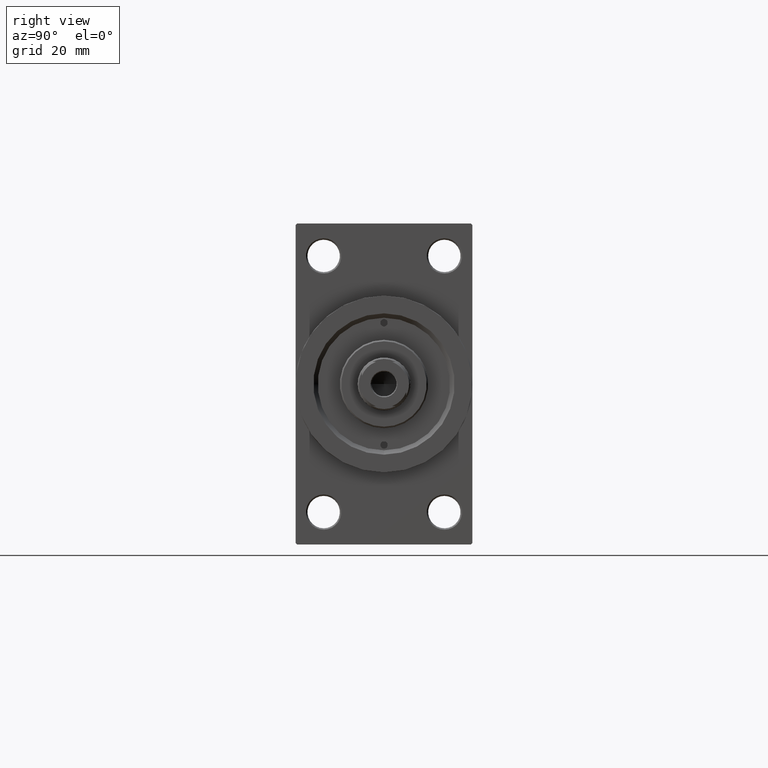
[diagram: clean part render]
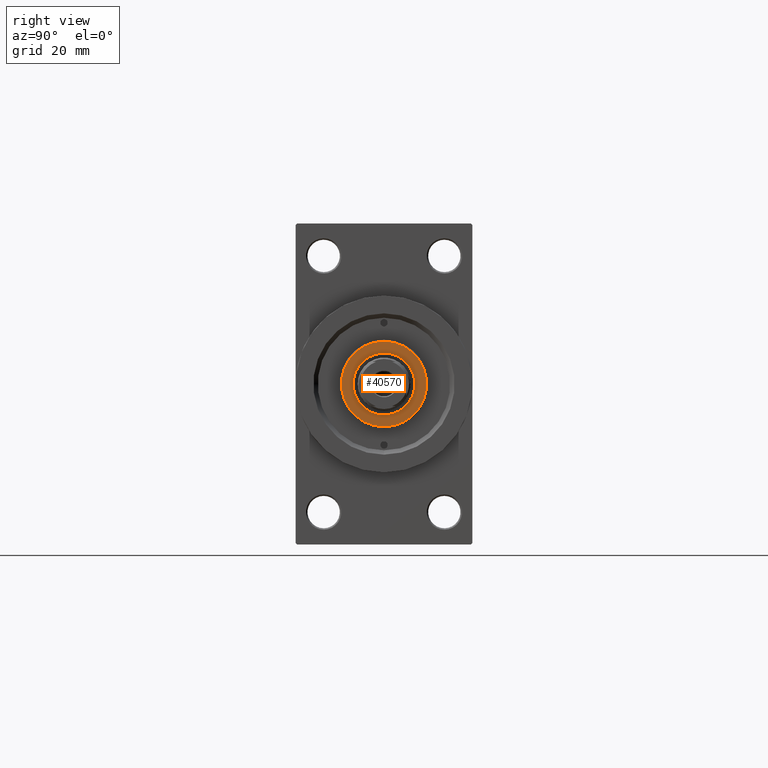
[diagram: same view with one face highlighted and labeled with its STEP entity id]
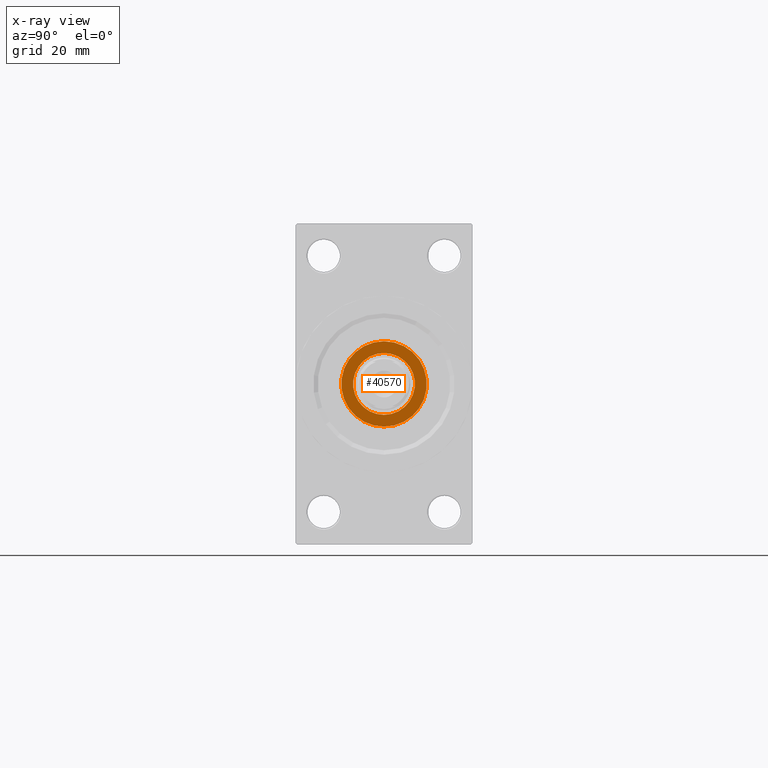
[diagram: x-ray of the same camera — body ghosted, the highlighted face saturated]
A machine part, right view. The second image highlights one B-rep face of the part: STEP entity #40570.
The next image is the same camera in x-ray: the body ghosted, the highlighted face saturated — about 0% of this face is hidden behind the body in this view.
In plain terms, the highlighted planar face has unit normal (1, -0, -0).
Its self-contained STEP definition (entity closure, byte-faithful):
#592 = CARTESIAN_POINT ( 'NONE',  ( 0.000000000000000000, 0.000000000000000000, 51.25999999999999801 ) ) ;
#1597 = AXIS2_PLACEMENT_3D ( 'NONE', #592, #25072, #11368 ) ;
#4886 = EDGE_LOOP ( 'NONE', ( #45594, #32292 ) ) ;
#7946 = VERTEX_POINT ( 'NONE', #34641 ) ;
#8311 = EDGE_CURVE ( 'NONE', #7946, #27792, #27903, .T. ) ;
#9457 = DIRECTION ( 'NONE',  ( 1.000000000000000000, 0.000000000000000000, 0.000000000000000000 ) ) ;
#9697 = CARTESIAN_POINT ( 'NONE',  ( 0.000000000000000000, 0.000000000000000000, 51.25999999999999801 ) ) ;
#11368 = DIRECTION ( 'NONE',  ( 1.000000000000000000, 0.000000000000000000, 0.000000000000000000 ) ) ;
#12523 = DIRECTION ( 'NONE',  ( 0.000000000000000000, 0.000000000000000000, 1.000000000000000000 ) ) ;
#15242 = CARTESIAN_POINT ( 'NONE',  ( 0.000000000000000000, 0.000000000000000000, 51.25999999999999801 ) ) ;
#15245 = AXIS2_PLACEMENT_3D ( 'NONE', #9697, #24558, #9457 ) ;
#15859 = DIRECTION ( 'NONE',  ( 1.000000000000000000, 0.000000000000000000, 0.000000000000000000 ) ) ;
#15942 = CIRCLE ( 'NONE', #46604, 14.49999999999999112 ) ;
#19084 = CIRCLE ( 'NONE', #15245, 14.49999999999999112 ) ;
#19129 = ORIENTED_EDGE ( 'NONE', *, *, #25816, .T. ) ;
#19484 = PLANE ( 'NONE',  #40145 ) ;
#20203 = EDGE_CURVE ( 'NONE', #25577, #32819, #15942, .T. ) ;
#20572 = CARTESIAN_POINT ( 'NONE',  ( -14.49999999999999112, 0.000000000000000000, 51.25999999999999801 ) ) ;
#23314 = DIRECTION ( 'NONE',  ( 1.000000000000000000, 0.000000000000000000, -0.000000000000000000 ) ) ;
#23770 = CARTESIAN_POINT ( 'NONE',  ( 0.000000000000000000, 0.000000000000000000, 51.25999999999999801 ) ) ;
#24558 = DIRECTION ( 'NONE',  ( 0.000000000000000000, 0.000000000000000000, 1.000000000000000000 ) ) ;
#24678 = EDGE_LOOP ( 'NONE', ( #19129, #31129 ) ) ;
#25072 = DIRECTION ( 'NONE',  ( 0.000000000000000000, 0.000000000000000000, 1.000000000000000000 ) ) ;
#25577 = VERTEX_POINT ( 'NONE', #46472 ) ;
#25816 = EDGE_CURVE ( 'NONE', #32819, #25577, #19084, .T. ) ;
#26037 = DIRECTION ( 'NONE',  ( 1.000000000000000000, 0.000000000000000000, 0.000000000000000000 ) ) ;
#27792 = VERTEX_POINT ( 'NONE', #29111 ) ;
#27903 = CIRCLE ( 'NONE', #42556, 10.50000000000000000 ) ;
#29111 = CARTESIAN_POINT ( 'NONE',  ( 10.50000000000000000, 0.000000000000000000, 51.25999999999999801 ) ) ;
#31129 = ORIENTED_EDGE ( 'NONE', *, *, #20203, .T. ) ;
#31252 = CARTESIAN_POINT ( 'NONE',  ( 0.000000000000000000, 0.000000000000000000, 51.25999999999999801 ) ) ;
#31489 = FACE_OUTER_BOUND ( 'NONE', #24678, .T. ) ;
#32292 = ORIENTED_EDGE ( 'NONE', *, *, #8311, .F. ) ;
#32819 = VERTEX_POINT ( 'NONE', #20572 ) ;
#34612 = FACE_BOUND ( 'NONE', #4886, .T. ) ;
#34641 = CARTESIAN_POINT ( 'NONE',  ( -10.50000000000000000, 1.285879139104720831E-15, 51.25999999999999801 ) ) ;
#35067 = DIRECTION ( 'NONE',  ( 0.000000000000000000, 0.000000000000000000, 1.000000000000000000 ) ) ;
#38395 = CIRCLE ( 'NONE', #1597, 10.50000000000000000 ) ;
#40145 = AXIS2_PLACEMENT_3D ( 'NONE', #31252, #12523, #23314 ) ;
#40570 = ADVANCED_FACE ( 'NONE', ( #34612, #31489 ), #19484, .T. ) ;
#42556 = AXIS2_PLACEMENT_3D ( 'NONE', #23770, #35067, #15859 ) ;
#44770 = DIRECTION ( 'NONE',  ( 0.000000000000000000, 0.000000000000000000, 1.000000000000000000 ) ) ;
#45594 = ORIENTED_EDGE ( 'NONE', *, *, #46394, .F. ) ;
#46394 = EDGE_CURVE ( 'NONE', #27792, #7946, #38395, .T. ) ;
#46472 = CARTESIAN_POINT ( 'NONE',  ( 14.49999999999999112, 1.806354028742345013E-15, 51.25999999999999801 ) ) ;
#46604 = AXIS2_PLACEMENT_3D ( 'NONE', #15242, #44770, #26037 ) ;